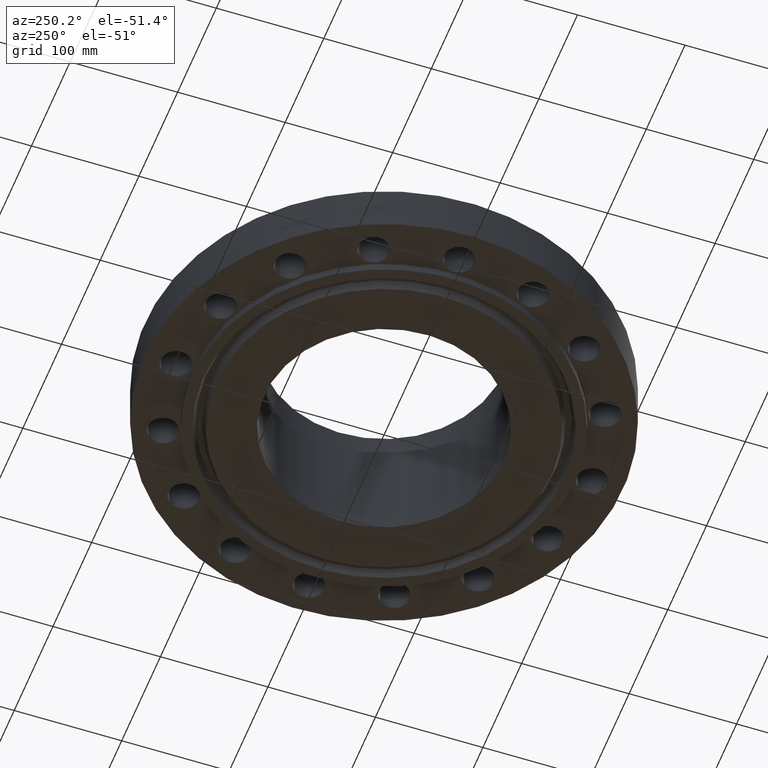
[diagram: clean part render]
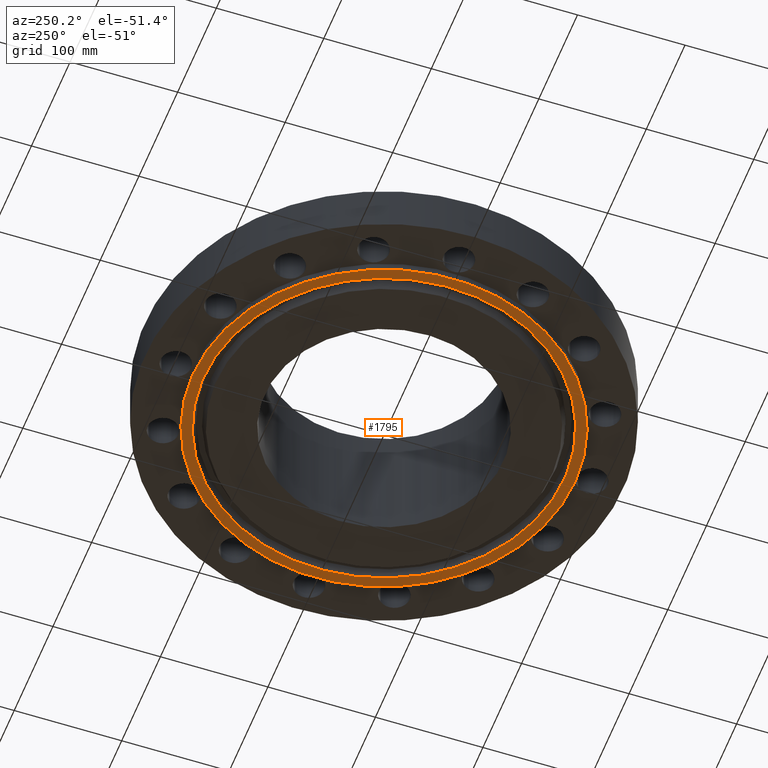
[diagram: same view with one face highlighted and labeled with its STEP entity id]
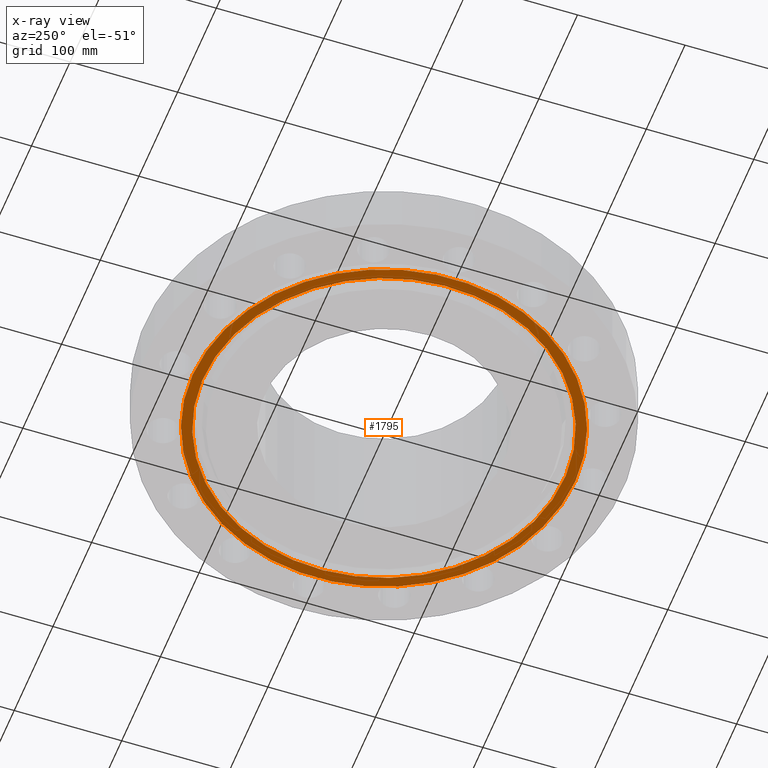
[diagram: x-ray of the same camera — body ghosted, the highlighted face saturated]
A machine part, auxiliary view. The second image highlights one B-rep face of the part: STEP entity #1795.
The next image is the same camera in x-ray: the body ghosted, the highlighted face saturated — about 0% of this face is hidden behind the body in this view.
In plain terms, the highlighted planar face has unit normal (0, 0, -1).
Its self-contained STEP definition (entity closure, byte-faithful):
#856=AXIS2_PLACEMENT_3D('Circle Axis2P3D',#854,#855,$) ;
#894=AXIS2_PLACEMENT_3D('Circle Axis2P3D',#892,#893,$) ;
#1771=AXIS2_PLACEMENT_3D('Plane Axis2P3D',#1768,#1769,#1770) ;
#1779=AXIS2_PLACEMENT_3D('Circle Axis2P3D',#1777,#1778,$) ;
#1788=AXIS2_PLACEMENT_3D('Circle Axis2P3D',#1786,#1787,$) ;
#854=CARTESIAN_POINT('Axis2P3D Location',(0.,0.,-0.312999999987)) ;
#858=CARTESIAN_POINT('Vertex',(3.35597877025,6.14307793326,-0.312999999987)) ;
#860=CARTESIAN_POINT('Vertex',(-3.35597877025,-6.14307793326,-0.313000000001)) ;
#892=CARTESIAN_POINT('Axis2P3D Location',(0.,0.,-0.313000000001)) ;
#1768=CARTESIAN_POINT('Axis2P3D Location',(0.,4.37500000002,-0.313000000001)) ;
#1777=CARTESIAN_POINT('Axis2P3D Location',(4.36650890423E-011,7.18711179809E-012,-0.313000000001)) ;
#1781=CARTESIAN_POINT('Vertex',(3.1687630974,-5.80038194286,-0.313000000001)) ;
#1783=CARTESIAN_POINT('Vertex',(-3.1687630974,5.80038194283,-0.313000000001)) ;
#1786=CARTESIAN_POINT('Axis2P3D Location',(-1.28118688012E-011,-2.36649894781E-011,-0.313000000001)) ;
#855=DIRECTION('Axis2P3D Direction',(0.,0.,-0.0393700787402)) ;
#893=DIRECTION('Axis2P3D Direction',(0.,0.,-0.0393700787402)) ;
#1769=DIRECTION('Axis2P3D Direction',(0.,0.,-0.0393700787402)) ;
#1770=DIRECTION('Axis2P3D XDirection',(0.0393700787402,0.,0.)) ;
#1778=DIRECTION('Axis2P3D Direction',(0.,0.,-0.0393700787402)) ;
#1787=DIRECTION('Axis2P3D Direction',(0.,0.,-0.0393700787402)) ;
#1774=ORIENTED_EDGE('',*,*,#896,.T.) ;
#1775=ORIENTED_EDGE('',*,*,#862,.T.) ;
#1792=ORIENTED_EDGE('',*,*,#1785,.F.) ;
#1793=ORIENTED_EDGE('',*,*,#1790,.F.) ;
#1794=FACE_BOUND('',#1791,.T.) ;
#1795=ADVANCED_FACE('PartBody',(#1776,#1794),#1772,.T.) ;
#857=CIRCLE('generated circle',#856,7.00000000003) ;
#895=CIRCLE('generated circle',#894,7.00000000003) ;
#1780=CIRCLE('generated circle',#1779,6.60950000003) ;
#1789=CIRCLE('generated circle',#1788,6.60950000003) ;
#862=EDGE_CURVE('',#859,#861,#857,.T.) ;
#896=EDGE_CURVE('',#861,#859,#895,.T.) ;
#1785=EDGE_CURVE('',#1782,#1784,#1780,.T.) ;
#1790=EDGE_CURVE('',#1784,#1782,#1789,.T.) ;
#1773=EDGE_LOOP('',(#1774,#1775)) ;
#1791=EDGE_LOOP('',(#1792,#1793)) ;
#1776=FACE_OUTER_BOUND('',#1773,.T.) ;
#1772=PLANE('',#1771) ;
#859=VERTEX_POINT('',#858) ;
#861=VERTEX_POINT('',#860) ;
#1782=VERTEX_POINT('',#1781) ;
#1784=VERTEX_POINT('',#1783) ;